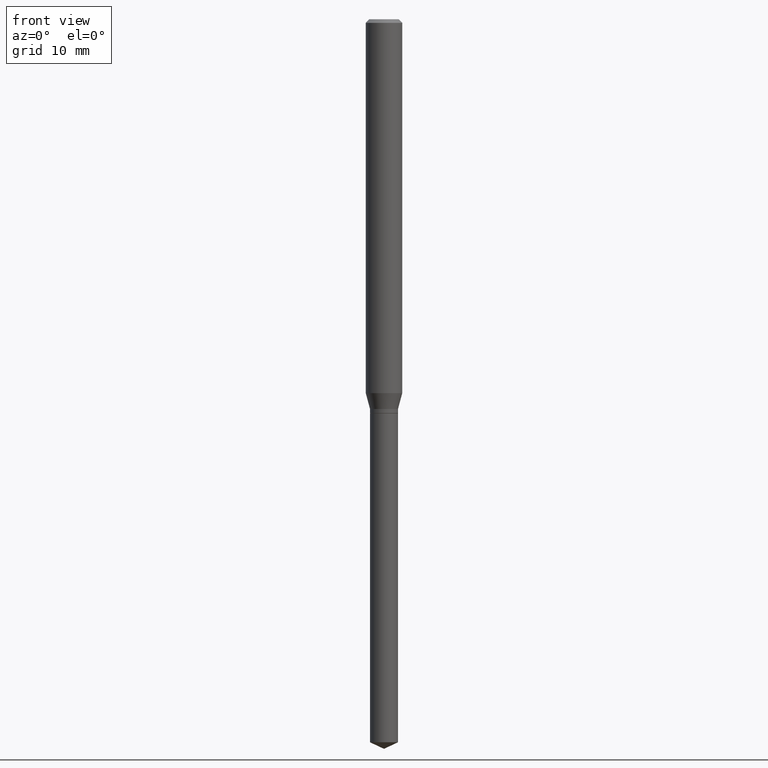
[diagram: clean part render]
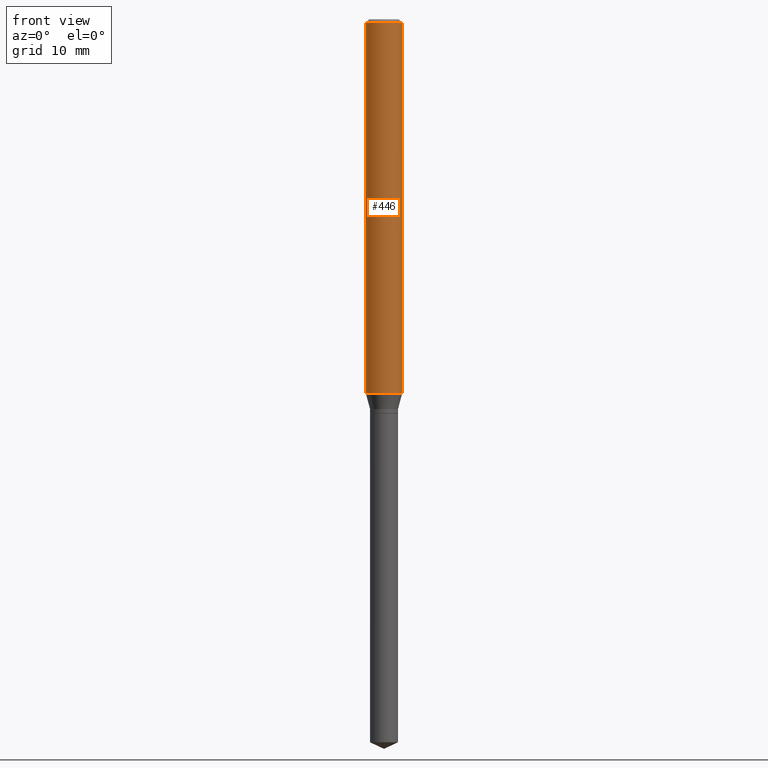
[diagram: same view with one face highlighted and labeled with its STEP entity id]
A machine part, front view. The second image highlights one B-rep face of the part: STEP entity #446.
In plain terms, the highlighted cylindrical surface (edge-blend (fillet) strip) has radius 1.4999 mm, axis along (-0, 0, 1).
Its self-contained STEP definition (entity closure, byte-faithful):
#1 = EDGE_CURVE ( 'NONE', #240, #176, #251, .T. ) ;
#21 = ORIENTED_EDGE ( 'NONE', *, *, #332, .T. ) ;
#85 = CARTESIAN_POINT ( 'NONE',  ( 0.05905000000000007465, -4.123439461173745750E-16, 2.879382386107504074E-30 ) ) ;
#138 = CARTESIAN_POINT ( 'NONE',  ( 2.888098660104663766E-31, -4.123439461173779647E-17, -0.01181000000000007044 ) ) ;
#144 = VECTOR ( 'NONE', #191, 39.37007874015748143 ) ;
#147 = CARTESIAN_POINT ( 'NONE',  ( -0.05905000000000015098, -3.807506160087890266E-15, -1.210684301395927420 ) ) ;
#165 = CARTESIAN_POINT ( 'NONE',  ( 2.960690693201784593E-29, -4.227081645554230547E-15, -1.210684301395927420 ) ) ;
#167 = VERTEX_POINT ( 'NONE', #403 ) ;
#171 = ORIENTED_EDGE ( 'NONE', *, *, #358, .T. ) ;
#176 = VERTEX_POINT ( 'NONE', #485 ) ;
#181 = AXIS2_PLACEMENT_3D ( 'NONE', #138, #248, #285 ) ;
#191 = DIRECTION ( 'NONE',  ( -2.445468806185136877E-29, 3.491481338843145188E-15, 1.000000000000000000 ) ) ;
#196 = LINE ( 'NONE', #85, #144 ) ;
#203 = CIRCLE ( 'NONE', #181, 0.05904999999999999832 ) ;
#215 = ORIENTED_EDGE ( 'NONE', *, *, #434, .F. ) ;
#240 = VERTEX_POINT ( 'NONE', #147 ) ;
#245 = ORIENTED_EDGE ( 'NONE', *, *, #1, .F. ) ;
#246 = FACE_OUTER_BOUND ( 'NONE', #435, .T. ) ;
#248 = DIRECTION ( 'NONE',  ( -2.445468806185136597E-29, 3.491481338843145583E-15, 1.000000000000000000 ) ) ;
#249 = DIRECTION ( 'NONE',  ( -2.445468806185136877E-29, 3.491481338843145188E-15, 1.000000000000000000 ) ) ;
#251 = LINE ( 'NONE', #286, #283 ) ;
#269 = AXIS2_PLACEMENT_3D ( 'NONE', #394, #391, #397 ) ;
#283 = VECTOR ( 'NONE', #249, 39.37007874015748143 ) ;
#285 = DIRECTION ( 'NONE',  ( 1.000000000000000000, -6.982962677686266711E-15, 0.000000000000000000 ) ) ;
#286 = CARTESIAN_POINT ( 'NONE',  ( -0.05905000000000007465, 4.195754854663396902E-16, -2.904631170795525395E-30 ) ) ;
#287 = VERTEX_POINT ( 'NONE', #305 ) ;
#305 = CARTESIAN_POINT ( 'NONE',  ( 0.05904999999999999832, -4.535783407291118600E-16, -0.01181000000000007044 ) ) ;
#316 = DIRECTION ( 'NONE',  ( -2.445468806185136597E-29, 3.491481338843145583E-15, 1.000000000000000000 ) ) ;
#332 = EDGE_CURVE ( 'NONE', #240, #167, #407, .T. ) ;
#351 = AXIS2_PLACEMENT_3D ( 'NONE', #165, #316, #464 ) ;
#358 = EDGE_CURVE ( 'NONE', #167, #287, #196, .T. ) ;
#391 = DIRECTION ( 'NONE',  ( -2.445468806185136597E-29, 3.491481338843145583E-15, 1.000000000000000000 ) ) ;
#394 = CARTESIAN_POINT ( 'NONE',  ( 0.000000000000000000, 0.000000000000000000, 0.000000000000000000 ) ) ;
#397 = DIRECTION ( 'NONE',  ( 1.000000000000000000, -6.982962677686266711E-15, 4.876176775795936353E-29 ) ) ;
#403 = CARTESIAN_POINT ( 'NONE',  ( 0.05905000000000015098, -4.639425591671605468E-15, -1.210684301395927420 ) ) ;
#407 = CIRCLE ( 'NONE', #351, 0.05905000000000015098 ) ;
#433 = CYLINDRICAL_SURFACE ( 'NONE', #269, 0.05905000000000007465 ) ;
#434 = EDGE_CURVE ( 'NONE', #176, #287, #203, .T. ) ;
#435 = EDGE_LOOP ( 'NONE', ( #245, #21, #171, #215 ) ) ;
#446 = ADVANCED_FACE ( 'NONE', ( #246 ), #433, .T. ) ;
#464 = DIRECTION ( 'NONE',  ( 1.000000000000000000, -6.982962677686262766E-15, 0.000000000000000000 ) ) ;
#485 = CARTESIAN_POINT ( 'NONE',  ( -0.05904999999999999832, -1.714582534616643462E-15, -0.01181000000000007044 ) ) ;